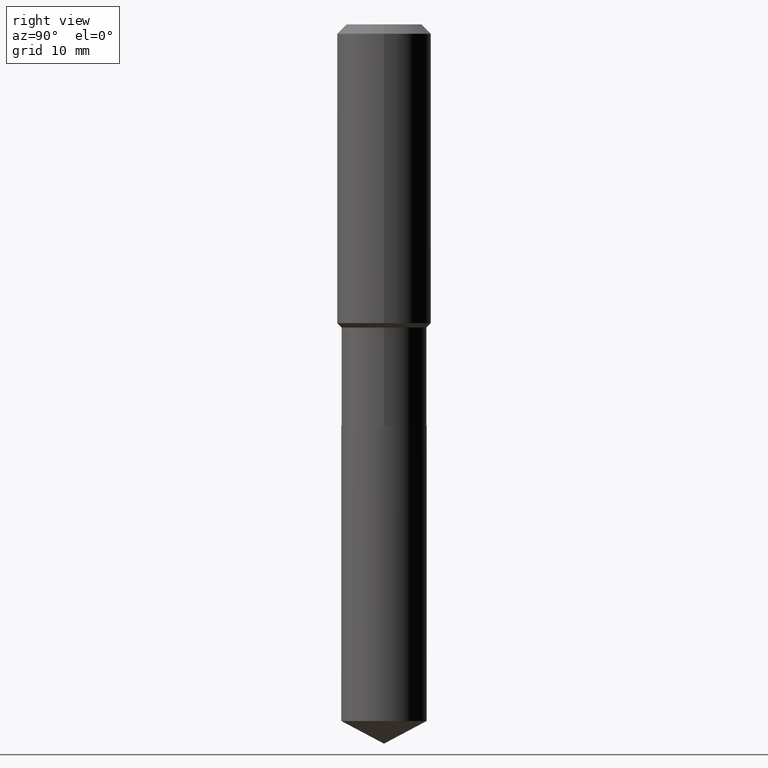
[diagram: clean part render]
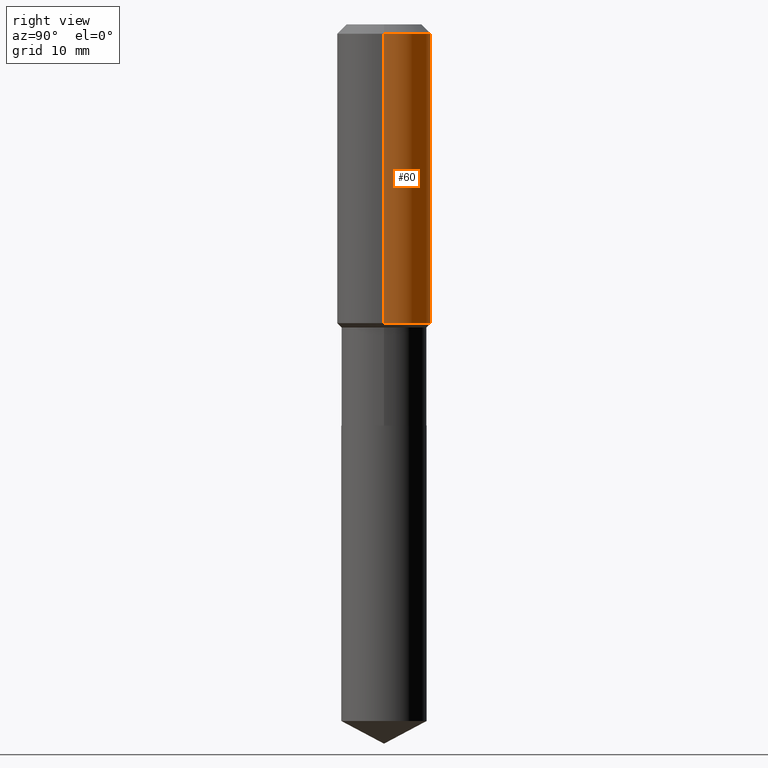
[diagram: same view with one face highlighted and labeled with its STEP entity id]
A machine part, right view. The second image highlights one B-rep face of the part: STEP entity #60.
In plain terms, the highlighted cylindrical surface (partial cylindrical patch) has radius 7.0002 mm, axis along (-0, 0, 1).
Its self-contained STEP definition (entity closure, byte-faithful):
#4 = VERTEX_POINT ( 'NONE', #471 ) ;
#43 = DIRECTION ( 'NONE',  ( -2.445468806185136597E-29, 3.491481338843145583E-15, 1.000000000000000000 ) ) ;
#52 = VERTEX_POINT ( 'NONE', #61 ) ;
#60 = ADVANCED_FACE ( 'NONE', ( #278 ), #171, .T. ) ;
#61 = CARTESIAN_POINT ( 'NONE',  ( -0.2756000000000000116, -1.192666469297548903E-15, -0.05512000000000035621 ) ) ;
#69 = AXIS2_PLACEMENT_3D ( 'NONE', #96, #212, #281 ) ;
#76 = CARTESIAN_POINT ( 'NONE',  ( 0.2756000000000001227, -1.924504513970336137E-15, 1.343874319409360548E-29 ) ) ;
#92 = LINE ( 'NONE', #234, #98 ) ;
#96 = CARTESIAN_POINT ( 'NONE',  ( 0.000000000000000000, 0.000000000000000000, 0.000000000000000000 ) ) ;
#98 = VECTOR ( 'NONE', #108, 39.37007874015748143 ) ;
#108 = DIRECTION ( 'NONE',  ( -2.445468806185136877E-29, 3.491481338843145188E-15, 1.000000000000000000 ) ) ;
#116 = DIRECTION ( 'NONE',  ( -2.445468806185136877E-29, 3.491481338843145188E-15, 1.000000000000000000 ) ) ;
#123 = CARTESIAN_POINT ( 'NONE',  ( -0.2756000000000002337, -4.151138266952898691E-15, -1.749800000000000244 ) ) ;
#148 = CARTESIAN_POINT ( 'NONE',  ( 1.347942405969256063E-30, -1.924504513970354330E-16, -0.05512000000000035621 ) ) ;
#149 = ORIENTED_EDGE ( 'NONE', *, *, #306, .T. ) ;
#171 = CYLINDRICAL_SURFACE ( 'NONE', #69, 0.2756000000000001227 ) ;
#173 = AXIS2_PLACEMENT_3D ( 'NONE', #343, #43, #386 ) ;
#188 = CIRCLE ( 'NONE', #464, 0.2756000000000000116 ) ;
#203 = CARTESIAN_POINT ( 'NONE',  ( 0.2756000000000000116, -2.116954965367370658E-15, -0.05512000000000035621 ) ) ;
#212 = DIRECTION ( 'NONE',  ( -2.445468806185136597E-29, 3.491481338843145583E-15, 1.000000000000000000 ) ) ;
#234 = CARTESIAN_POINT ( 'NONE',  ( -0.2756000000000001227, 1.958255779754836984E-15, -1.355658510874252567E-29 ) ) ;
#241 = VECTOR ( 'NONE', #116, 39.37007874015748143 ) ;
#263 = CIRCLE ( 'NONE', #173, 0.2756000000000002337 ) ;
#264 = LINE ( 'NONE', #76, #241 ) ;
#278 = FACE_OUTER_BOUND ( 'NONE', #349, .T. ) ;
#281 = DIRECTION ( 'NONE',  ( 1.000000000000000000, -6.982962677686267499E-15, 4.876176775795935793E-29 ) ) ;
#289 = EDGE_CURVE ( 'NONE', #312, #52, #188, .T. ) ;
#306 = EDGE_CURVE ( 'NONE', #316, #52, #92, .T. ) ;
#310 = ORIENTED_EDGE ( 'NONE', *, *, #371, .T. ) ;
#312 = VERTEX_POINT ( 'NONE', #203 ) ;
#316 = VERTEX_POINT ( 'NONE', #123 ) ;
#339 = EDGE_CURVE ( 'NONE', #4, #312, #264, .T. ) ;
#343 = CARTESIAN_POINT ( 'NONE',  ( 4.279081317062752596E-29, -6.109394046707736858E-15, -1.749800000000000244 ) ) ;
#349 = EDGE_LOOP ( 'NONE', ( #310, #149, #372, #410 ) ) ;
#352 = DIRECTION ( 'NONE',  ( 1.000000000000000000, -6.982962677686265922E-15, 0.000000000000000000 ) ) ;
#371 = EDGE_CURVE ( 'NONE', #4, #316, #263, .T. ) ;
#372 = ORIENTED_EDGE ( 'NONE', *, *, #289, .F. ) ;
#386 = DIRECTION ( 'NONE',  ( 1.000000000000000000, -6.982962677686267499E-15, 0.000000000000000000 ) ) ;
#410 = ORIENTED_EDGE ( 'NONE', *, *, #339, .F. ) ;
#462 = DIRECTION ( 'NONE',  ( -2.445468806185136597E-29, 3.491481338843145583E-15, 1.000000000000000000 ) ) ;
#464 = AXIS2_PLACEMENT_3D ( 'NONE', #148, #462, #352 ) ;
#471 = CARTESIAN_POINT ( 'NONE',  ( 0.2756000000000002337, -8.033898560678073390E-15, -1.749800000000000244 ) ) ;